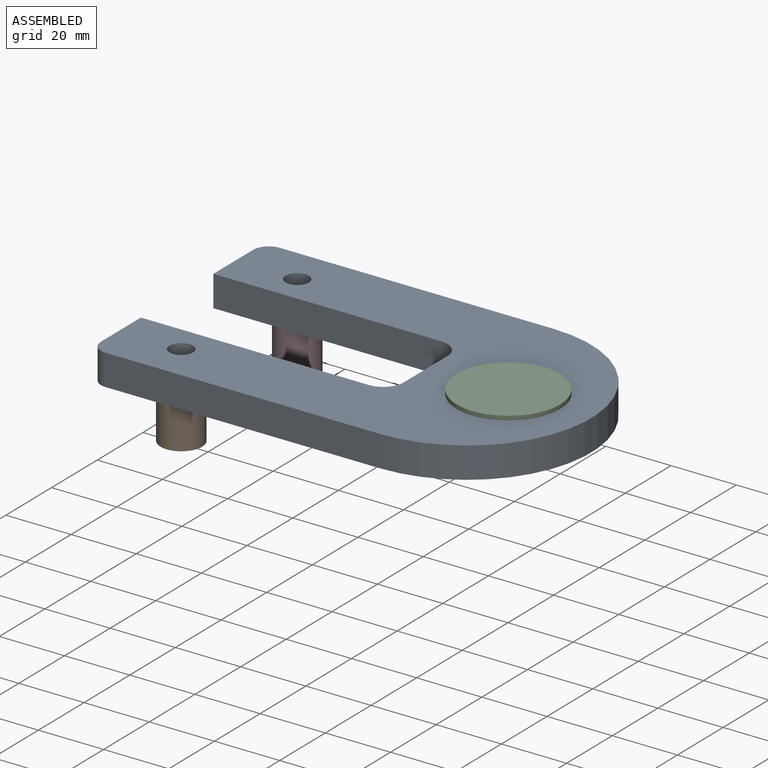
[diagram: assembled view]
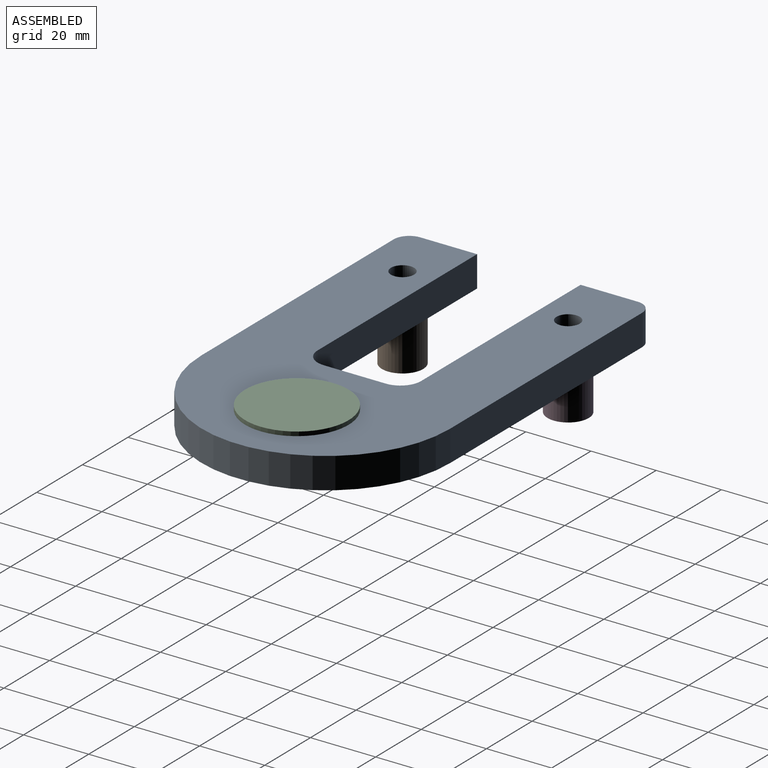
[diagram: assembled view, second angle]
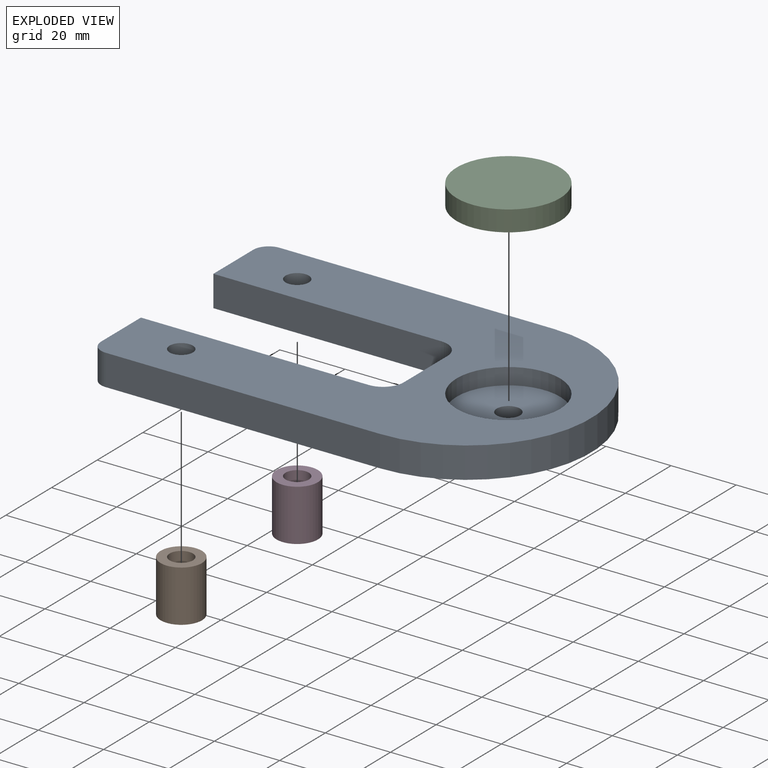
[diagram: exploded view]
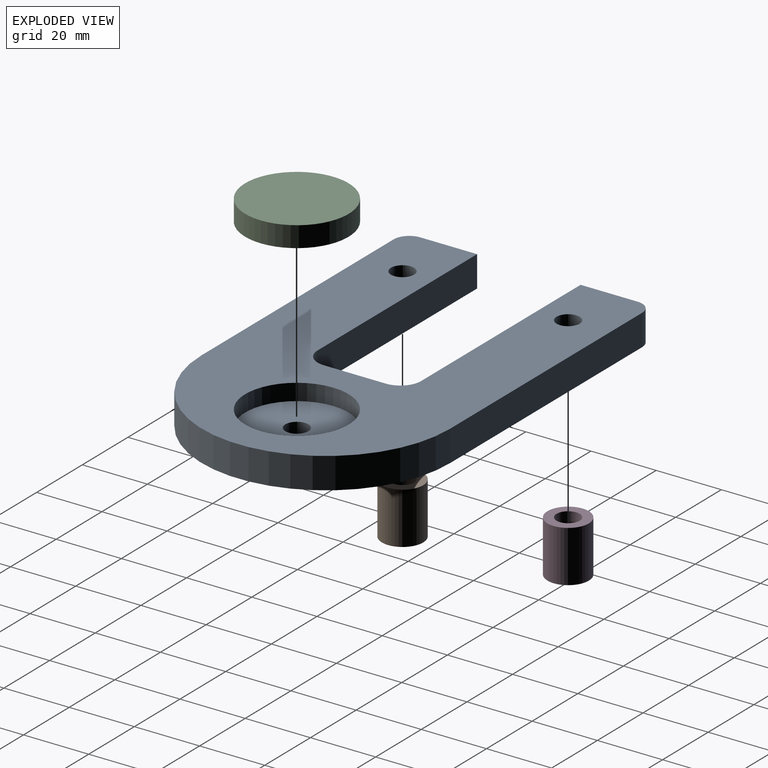
[diagram: exploded view, second angle]
ASSEMBLY  parts=4 mates=3
PART A: 19 faces, bbox 127x76.2x9.5 mm
  f0: cylinder r=6.35mm len=9.53mm, axis (0,0,-1), area 95mm2, adj f1,f12,f13,f14
  f1: plane 69.85x9.53mm, normal (0,1,0), area 665.3mm2, adj f0,f2,f13,f14
  f2: plane 17.45x9.53mm, normal (-1,0,0), area 166.2mm2, adj f1,f3,f13,f14
  f3: cylinder r=4.78mm len=9.53mm, axis (0,0,-1), area 71.4mm2, adj f2,f4,f13,f14
  f4: plane 84.12x9.53mm, normal (0,-1,0), area 801.3mm2, adj f3,f5,f13,f14
  f5: cylinder r=38.1mm len=76.2mm, axis (0,0,-1), area 1140.1mm2, adj f4,f6,f13,f14
  f6: plane 84.12x9.53mm, normal (0,1,0), area 801.3mm2, adj f5,f7,f13,f14
  f7: cylinder r=4.78mm len=9.53mm, axis (0,0,-1), area 71.4mm2, adj f6,f8,f13,f14
  f8: plane 17.45x9.53mm, normal (-1,0,0), area 166.2mm2, adj f7,f9,f13,f14
  f9: plane 69.85x9.53mm, normal (0,-1,0), area 665.3mm2, adj f8,f10,f13,f14
  f10: cylinder r=6.35mm len=9.53mm, axis (0,0,-1), area 95mm2, adj f9,f12,f13,f14
  f11: cylinder r=15.88mm len=31.75mm, axis (0,0,-1), area 506.7mm2, adj f13,f17
  f12: plane 19.05x9.53mm, normal (-1,0,0), area 181.5mm2, adj f0,f10,f13,f14
  f13: plane 127x76.2mm, normal (0,0,1), area 5770.8mm2, adj f0,f1,f2,f3,f4,f5,f6,f7
  f14: plane 127x76.2mm, normal (0,0,-1), area 6522.5mm2, adj f0,f1,f2,f3,f4,f5,f6,f7
  f15: cylinder r=3.57mm len=9.53mm, axis (0,0,-1), area 213.6mm2, adj f13,f14
  f16: cylinder r=3.57mm len=9.53mm, axis (0,0,-1), area 213.6mm2, adj f13,f14
  f17: plane 31.75x31.75mm, normal (0,0,1), area 751.7mm2, adj f11,f18
  f18: cylinder r=3.57mm len=7.14mm, axis (0,0,-1), area 99.7mm2, adj f14,f17
PART B: 4 faces, bbox 12.7x12.7x15.9 mm
  f0: cylinder r=6.35mm len=15.88mm, axis (0,0,-1), area 633.4mm2, adj f1,f2
  f1: plane 12.7x12.7mm, normal (0,0,1), area 86.7mm2, adj f0,f3
  f2: plane 12.7x12.7mm, normal (0,0,-1), area 86.7mm2, adj f0,f3
  f3: cylinder r=3.57mm len=15.88mm, axis (0,0,-1), area 356mm2, adj f1,f2
PART C: 3 faces, bbox 31.8x31.8x6.4 mm
  f0: cylinder r=15.88mm len=31.75mm, axis (0,0,-1), area 633.4mm2, adj f1,f2
  f1: plane 31.75x31.75mm, normal (0,0,1), area 791.7mm2, adj f0
  f2: plane 31.75x31.75mm, normal (0,0,-1), area 791.7mm2, adj f0
PART D: same geometry as B
PLACE A t=(-2.9,-1.5,-4.5)mm
PLACE B t=(-47.35,-26.9,-20.38)mm
PLACE C t=(35.2,-1.5,-0.06)mm
PLACE D t=(-47.35,23.9,-20.38)mm
MATE fastened C.f0 <-> A.f11  axis (0,0,-1) through (35.2,-1.5,-0.06)mm
MATE fastened D.f0 <-> A.f15  axis (0,0,-1) through (-47.35,23.9,-4.5)mm
MATE fastened B.f0 <-> A.f16  axis (0,0,1) through (-47.35,-26.9,-4.5)mm
